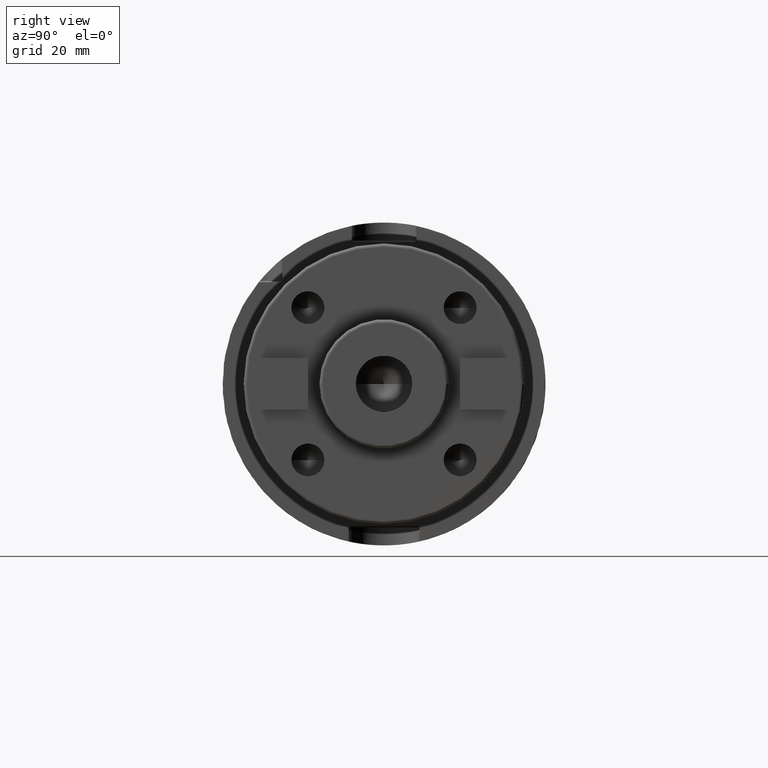
[diagram: clean part render]
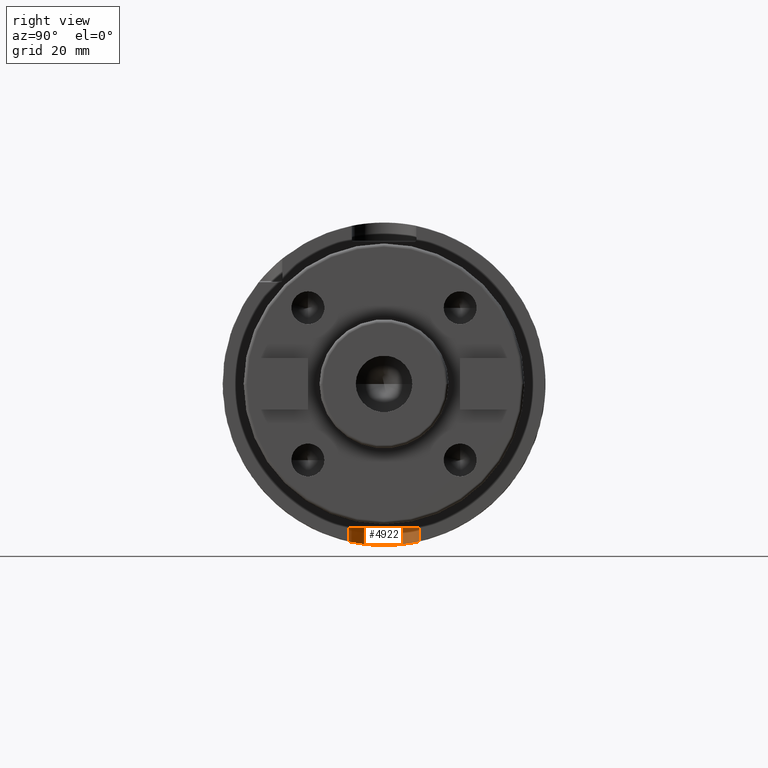
[diagram: same view with one face highlighted and labeled with its STEP entity id]
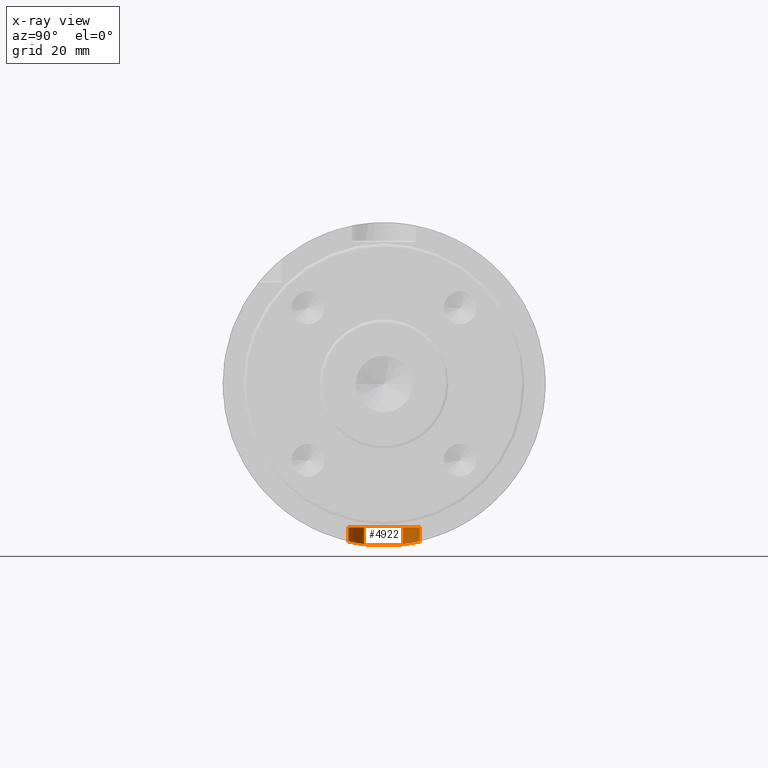
[diagram: x-ray of the same camera — body ghosted, the highlighted face saturated]
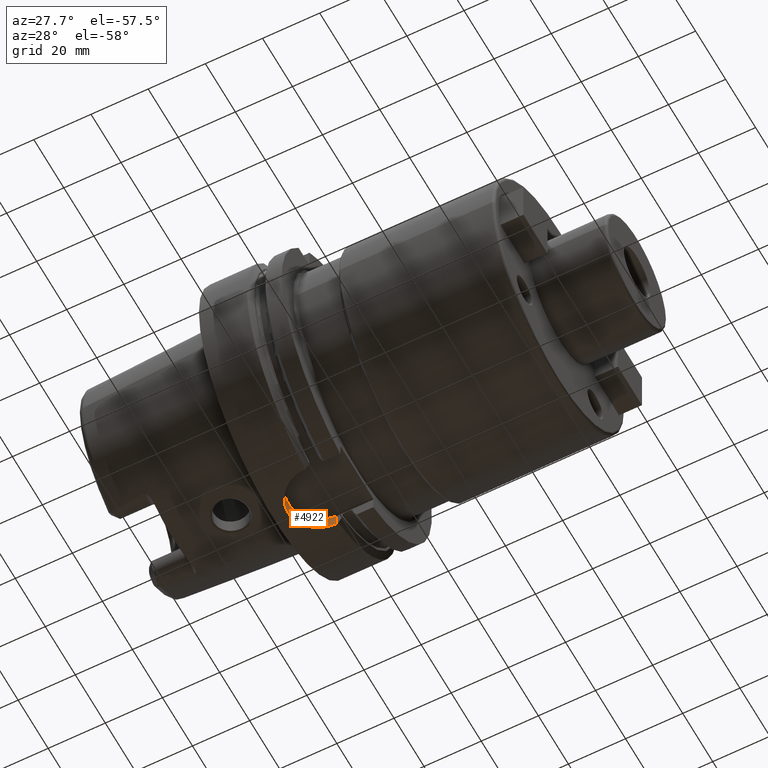
[diagram: same view with one face highlighted and labeled with its STEP entity id]
A machine part, right view. The second image highlights one B-rep face of the part: STEP entity #4922.
The next image is the same camera in x-ray: the body ghosted, the highlighted face saturated — about 0% of this face is hidden behind the body in this view.
A second angle (auxiliary view) of the same face is appended — the face is thin or edge-on in the first view.
In plain terms, the highlighted cylindrical surface (edge-blend (fillet) strip) has radius 11 mm, axis along (0, 0, -1).
Its self-contained STEP definition (entity closure, byte-faithful):
#1211=CARTESIAN_POINT('',(1.6E1,1.1E1,-4.877499359303E1));
#1212=CARTESIAN_POINT('',(1.559018257905E1,1.1E1,-4.877499359303E1));
#1213=CARTESIAN_POINT('',(1.477711159673E1,1.095451320529E1,-4.878528536585E1));
#1214=CARTESIAN_POINT('',(1.357067145529E1,1.075155562543E1,-4.883060913739E1));
#1215=CARTESIAN_POINT('',(1.239697044362E1,1.041701199330E1,-4.890337958253E1));
#1216=CARTESIAN_POINT('',(1.126604368867E1,9.954285023678E0,-4.900007168819E1));
#1217=CARTESIAN_POINT('',(1.018861460789E1,9.366719390129E0,-4.911629237336E1));
#1218=CARTESIAN_POINT('',(9.171169852965E0,8.653611601527E0,-4.924753373663E1));
#1219=CARTESIAN_POINT('',(8.238112427873E0,7.827355870653E0,-4.938617340423E1));
#1220=CARTESIAN_POINT('',(7.408534809738E0,6.906350690547E0,-4.952392252207E1));
#1221=CARTESIAN_POINT('',(6.684814288863E0,5.894847548323E0,-4.965510065551E1));
#1222=CARTESIAN_POINT('',(6.073071272628E0,4.794393782369E0,-4.977397254495E1));
#1223=CARTESIAN_POINT('',(5.592123651736E0,3.632677023721E0,-4.987254683568E1));
#1224=CARTESIAN_POINT('',(5.250238197135E0,2.439289241831E0,-4.994531736735E1));
#1225=CARTESIAN_POINT('',(5.045520699082E0,1.225562746985E0,-4.998995582807E1));
#1226=CARTESIAN_POINT('',(4.977227881444E0,-3.740276953115E-4,
-5.000502466790E1));
#1227=CARTESIAN_POINT('',(5.045567799397E0,-1.225855878190E0,
-4.998994549498E1));
#1228=CARTESIAN_POINT('',(5.250299426848E0,-2.439598673877E0,
-4.994530410544E1));
#1229=CARTESIAN_POINT('',(5.592303250762E0,-3.633222860669E0,
-4.987250891646E1));
#1230=CARTESIAN_POINT('',(6.073397920689E0,-4.795067840635E0,
-4.977390711218E1));
#1231=CARTESIAN_POINT('',(6.685094341996E0,-5.895262007410E0,
-4.965504880039E1));
#1232=CARTESIAN_POINT('',(7.408627914384E0,-6.906453417659E0,
-4.952390705198E1));
#1233=CARTESIAN_POINT('',(8.238178868202E0,-7.827424926999E0,
-4.938616267622E1));
#1234=CARTESIAN_POINT('',(9.171249006951E0,-8.653666912305E0,
-4.924752342943E1));
#1235=CARTESIAN_POINT('',(1.018844028681E1,-9.366593829070E0,
-4.911631544663E1));
#1236=CARTESIAN_POINT('',(1.126555151976E1,-9.954042725384E0,
-4.900012084109E1));
#1237=CARTESIAN_POINT('',(1.239641067197E1,-1.041682105138E1,
-4.890342051862E1));
#1238=CARTESIAN_POINT('',(1.357019214113E1,-1.075145104870E1,
-4.883063231386E1));
#1239=CARTESIAN_POINT('',(1.477674649303E1,-1.095448033737E1,
-4.878529280321E1));
#1240=CARTESIAN_POINT('',(1.559004302136E1,-1.1E1,-4.877499359303E1));
#1241=CARTESIAN_POINT('',(1.6E1,-1.1E1,-4.877499359303E1));
#1247=DIRECTION('',(-3.635141956890E-10,-7.503736116501E-10,-1.E0));
#1248=VECTOR('',#1247,4.374993596331E0);
#1249=CARTESIAN_POINT('',(1.600000000159E1,1.100000000328E1,-4.439999999670E1));
#1250=LINE('',#1249,#1248);
#1284=DIRECTION('',(-3.065204643715E-10,7.513679669119E-10,-1.E0));
#1285=VECTOR('',#1284,4.374993596327E0);
#1286=CARTESIAN_POINT('',(1.600000000134E1,-1.100000000329E1,
-4.439999999670E1));
#1287=LINE('',#1286,#1285);
#1288=CARTESIAN_POINT('',(1.6E1,0.E0,-4.440000068944E1));
#1289=DIRECTION('',(0.E0,0.E0,1.E0));
#1290=DIRECTION('',(0.E0,1.E0,0.E0));
#1291=AXIS2_PLACEMENT_3D('',#1288,#1289,#1290);
#3340=CARTESIAN_POINT('',(1.6E1,1.1E1,-4.877499359303E1));
#3342=VERTEX_POINT('',#3340);
#3348=CARTESIAN_POINT('',(1.6E1,-1.1E1,-4.877499359303E1));
#3350=VERTEX_POINT('',#3348);
#3382=CARTESIAN_POINT('',(1.600000000134E1,-1.100000000329E1,
-4.439999999670E1));
#3383=VERTEX_POINT('',#3382);
#3384=CARTESIAN_POINT('',(1.600000000159E1,1.100000000328E1,-4.439999999670E1));
#3385=VERTEX_POINT('',#3384);
#4911=CARTESIAN_POINT('',(1.6E1,0.E0,-4.4E1));
#4912=DIRECTION('',(0.E0,0.E0,-1.E0));
#4913=DIRECTION('',(1.E0,0.E0,0.E0));
#4914=AXIS2_PLACEMENT_3D('',#4911,#4912,#4913);
#4915=CYLINDRICAL_SURFACE('',#4914,1.1E1);
#4916=ORIENTED_EDGE('',*,*,#4889,.F.);
#4917=ORIENTED_EDGE('',*,*,#4852,.F.);
#4918=ORIENTED_EDGE('',*,*,#4823,.T.);
#4919=ORIENTED_EDGE('',*,*,#4794,.T.);
#4920=EDGE_LOOP('',(#4916,#4917,#4918,#4919));
#4921=FACE_OUTER_BOUND('',#4920,.F.);
#4922=ADVANCED_FACE('',(#4921),#4915,.F.);
#1242=B_SPLINE_CURVE_WITH_KNOTS('',3,(#1211,#1212,#1213,#1214,#1215,#1216,#1217,
#1218,#1219,#1220,#1221,#1222,#1223,#1224,#1225,#1226,#1227,#1228,#1229,#1230,
#1231,#1232,#1233,#1234,#1235,#1236,#1237,#1238,#1239,#1240,#1241),
.UNSPECIFIED.,.F.,.F.,(4,1,1,1,1,1,1,1,1,1,1,1,1,1,1,1,1,1,1,1,1,1,1,1,1,1,1,1,
4),(0.E0,3.571428571429E-2,7.142857142857E-2,1.071428571429E-1,
1.428571428571E-1,1.785714285714E-1,2.142857142857E-1,2.5E-1,2.857142857143E-1,
3.214285714286E-1,3.571428571429E-1,3.928571428571E-1,4.285714285714E-1,
4.642857142857E-1,5.E-1,5.357142857143E-1,5.714285714286E-1,6.071428571429E-1,
6.428571428571E-1,6.785714285714E-1,7.142857142857E-1,7.5E-1,7.857142857143E-1,
8.214285714286E-1,8.571428571429E-1,8.928571428571E-1,9.285714285714E-1,
9.642857142857E-1,1.E0),.UNSPECIFIED.);
#1292=CIRCLE('',#1291,1.1E1);
#4794=EDGE_CURVE('',#3342,#3350,#1242,.T.);
#4823=EDGE_CURVE('',#3385,#3342,#1250,.T.);
#4852=EDGE_CURVE('',#3385,#3383,#1292,.T.);
#4889=EDGE_CURVE('',#3383,#3350,#1287,.T.);